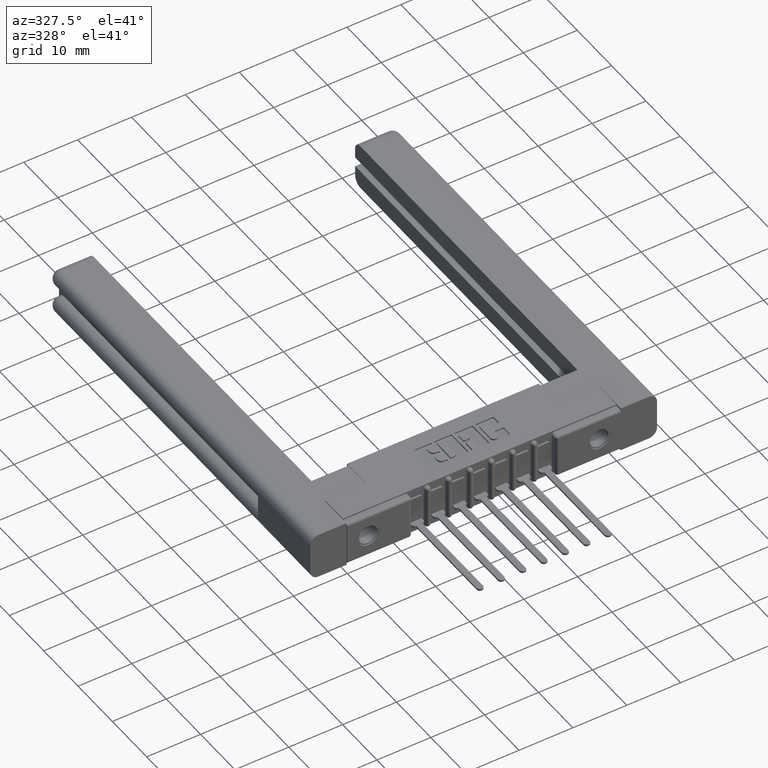
[diagram: clean part render]
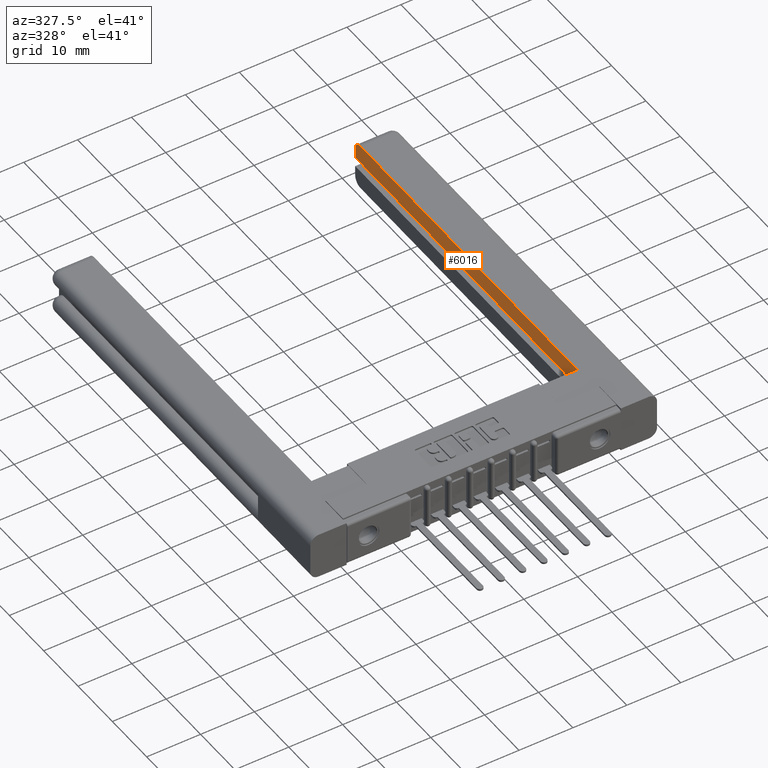
[diagram: same view with one face highlighted and labeled with its STEP entity id]
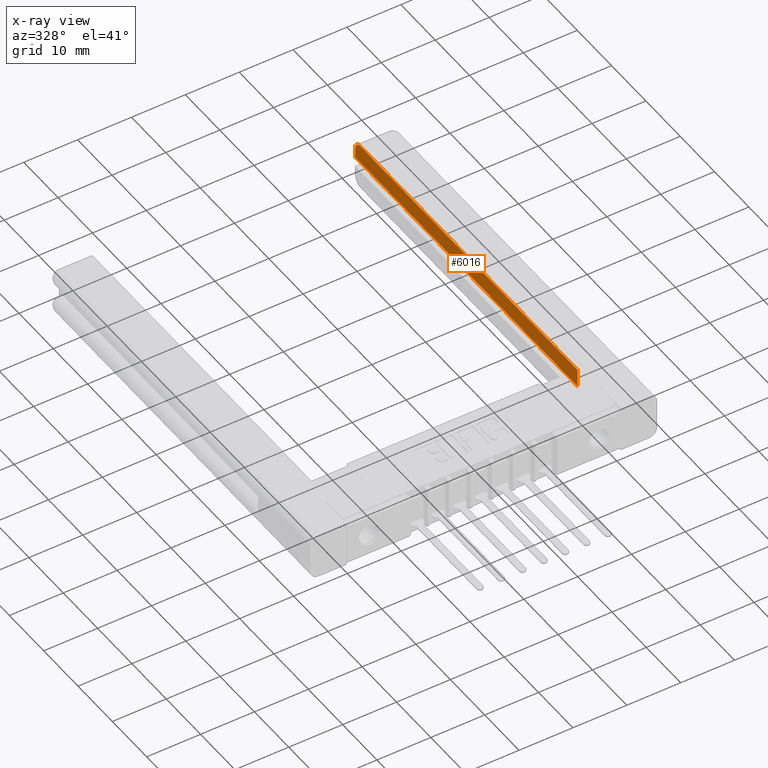
[diagram: x-ray of the same camera — body ghosted, the highlighted face saturated]
A machine part, auxiliary view. The second image highlights one B-rep face of the part: STEP entity #6016.
The next image is the same camera in x-ray: the body ghosted, the highlighted face saturated — about 0% of this face is hidden behind the body in this view.
In plain terms, the highlighted planar face has unit normal (-1, -0, -0).
Its self-contained STEP definition (entity closure, byte-faithful):
#305 = VERTEX_POINT ( 'NONE', #9070 ) ;
#702 = DIRECTION ( 'NONE',  ( 5.915108984173514150E-16, 1.000000000000000000, -2.334284690065039000E-16 ) ) ;
#1108 = LINE ( 'NONE', #4166, #1832 ) ;
#1290 = ORIENTED_EDGE ( 'NONE', *, *, #6786, .T. ) ;
#1598 = VERTEX_POINT ( 'NONE', #6596 ) ;
#1617 = VECTOR ( 'NONE', #9679, 39.37007874015748143 ) ;
#1629 = DIRECTION ( 'NONE',  ( 1.000000000000000000, -5.915108984173514150E-16, 4.510281037539700911E-17 ) ) ;
#1832 = VECTOR ( 'NONE', #8180, 39.37007874015748143 ) ;
#2481 = EDGE_CURVE ( 'NONE', #5675, #1598, #4024, .T. ) ;
#2496 = DIRECTION ( 'NONE',  ( 5.691349986800556753E-16, 1.000000000000000000, 0.0000000000000000000 ) ) ;
#2859 = CARTESIAN_POINT ( 'NONE',  ( 0.2950000000000065348, 3.000000000000006661, -0.3400000000000031886 ) ) ;
#3073 = CARTESIAN_POINT ( 'NONE',  ( 0.2950000000000062572, 0.4500000000000002331, -0.3400000000000031886 ) ) ;
#3373 = ORIENTED_EDGE ( 'NONE', *, *, #3378, .F. ) ;
#3378 = EDGE_CURVE ( 'NONE', #1598, #305, #1108, .T. ) ;
#3600 = EDGE_CURVE ( 'NONE', #4738, #305, #11863, .T. ) ;
#3631 = LINE ( 'NONE', #12701, #5506 ) ;
#3648 = DIRECTION ( 'NONE',  ( 5.915108984173514150E-16, 1.000000000000000000, -2.334284690065039000E-16 ) ) ;
#4024 = LINE ( 'NONE', #12892, #10954 ) ;
#4166 = CARTESIAN_POINT ( 'NONE',  ( 0.2950000000000062572, 0.4500000000000001221, -0.2055000000000009319 ) ) ;
#4738 = VERTEX_POINT ( 'NONE', #9177 ) ;
#4854 = ORIENTED_EDGE ( 'NONE', *, *, #2481, .F. ) ;
#5154 = DIRECTION ( 'NONE',  ( 4.510281037539688585E-17, -2.334284690065025688E-16, 1.000000000000000000 ) ) ;
#5506 = VECTOR ( 'NONE', #702, 39.37007874015748143 ) ;
#5675 = VERTEX_POINT ( 'NONE', #3073 ) ;
#6016 = ADVANCED_FACE ( 'NONE', ( #10626 ), #12513, .T. ) ;
#6596 = CARTESIAN_POINT ( 'NONE',  ( 0.2950000000000062572, 0.4500000000000001221, -0.2055000000000009319 ) ) ;
#6786 = EDGE_CURVE ( 'NONE', #11387, #4738, #10756, .T. ) ;
#6940 = ORIENTED_EDGE ( 'NONE', *, *, #3600, .T. ) ;
#8180 = DIRECTION ( 'NONE',  ( 5.915108984173514150E-16, 1.000000000000000000, -2.334284690065039000E-16 ) ) ;
#9070 = CARTESIAN_POINT ( 'NONE',  ( 0.2950000000000065348, 3.000000000000006661, -0.2055000000000018201 ) ) ;
#9177 = CARTESIAN_POINT ( 'NONE',  ( 0.2950000000000065348, 3.000000000000006661, -0.2800000000000026357 ) ) ;
#9238 = AXIS2_PLACEMENT_3D ( 'NONE', #12452, #1629, #3648 ) ;
#9679 = DIRECTION ( 'NONE',  ( 4.510281037539688585E-17, -2.334284690065025688E-16, 1.000000000000000000 ) ) ;
#9867 = CARTESIAN_POINT ( 'NONE',  ( 0.2950000000000065348, 2.940000000000007052, -0.3400000000000031886 ) ) ;
#10378 = CARTESIAN_POINT ( 'NONE',  ( 0.2950000000000065348, 2.940000000000007052, -0.2800000000000026357 ) ) ;
#10626 = FACE_OUTER_BOUND ( 'NONE', #10759, .T. ) ;
#10756 = CIRCLE ( 'NONE', #10963, 0.05999999999999990757 ) ;
#10759 = EDGE_LOOP ( 'NONE', ( #10998, #1290, #6940, #3373, #4854 ) ) ;
#10954 = VECTOR ( 'NONE', #5154, 39.37007874015748143 ) ;
#10963 = AXIS2_PLACEMENT_3D ( 'NONE', #10378, #11482, #2496 ) ;
#10998 = ORIENTED_EDGE ( 'NONE', *, *, #11143, .T. ) ;
#11143 = EDGE_CURVE ( 'NONE', #5675, #11387, #3631, .T. ) ;
#11387 = VERTEX_POINT ( 'NONE', #9867 ) ;
#11482 = DIRECTION ( 'NONE',  ( 1.000000000000000000, 8.325563096230176097E-16, 4.510281037539667631E-17 ) ) ;
#11863 = LINE ( 'NONE', #2859, #1617 ) ;
#12452 = CARTESIAN_POINT ( 'NONE',  ( 0.2950000000000065348, 3.000000000000006661, -0.3400000000000031886 ) ) ;
#12513 = PLANE ( 'NONE',  #9238 ) ;
#12701 = CARTESIAN_POINT ( 'NONE',  ( 0.2950000000000065348, 3.000000000000006661, -0.3400000000000031886 ) ) ;
#12892 = CARTESIAN_POINT ( 'NONE',  ( 0.2950000000000062572, 0.4500000000000002331, -0.3400000000000031886 ) ) ;